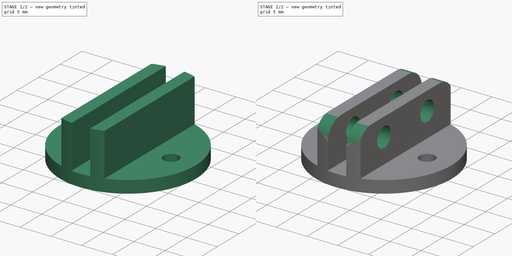
[diagram: build sequence overview — one tinted view per stage of 2, left to right]
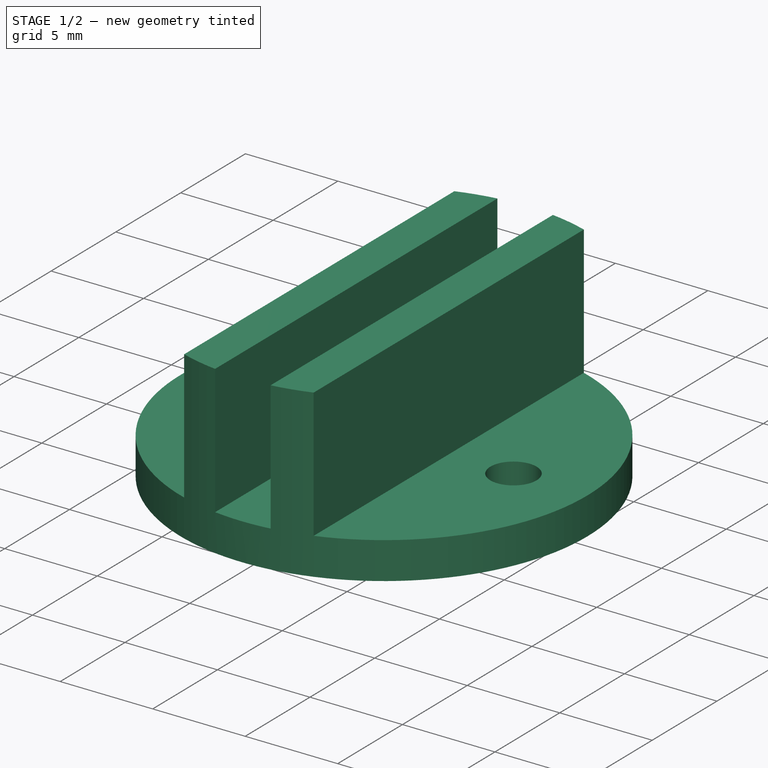
[diagram: stage 1 of 2 — iso view after this stage's code; geometry added in this stage tinted green]
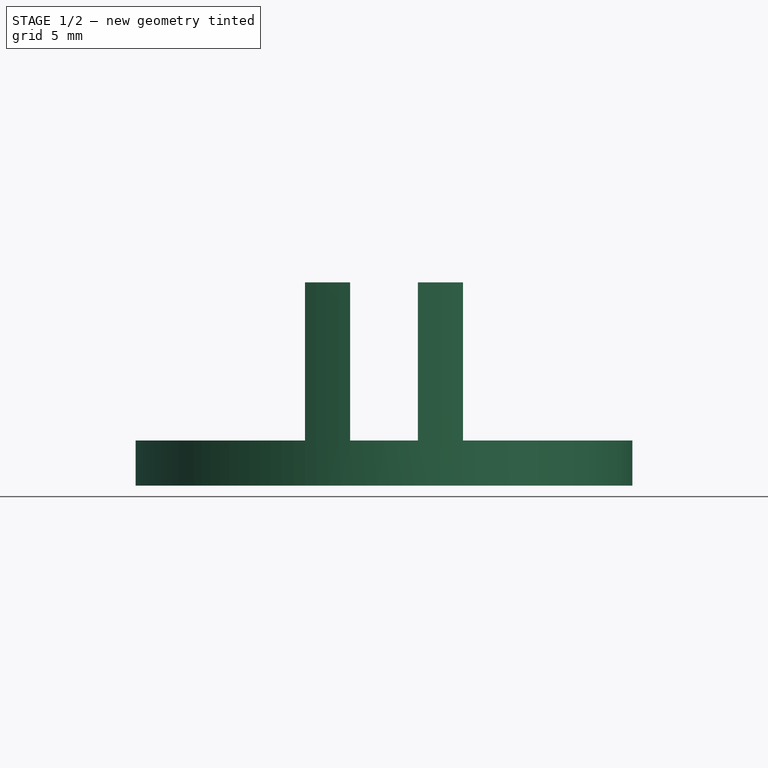
[diagram: stage 1 of 2 — front view after this stage's code; geometry added in this stage tinted green]
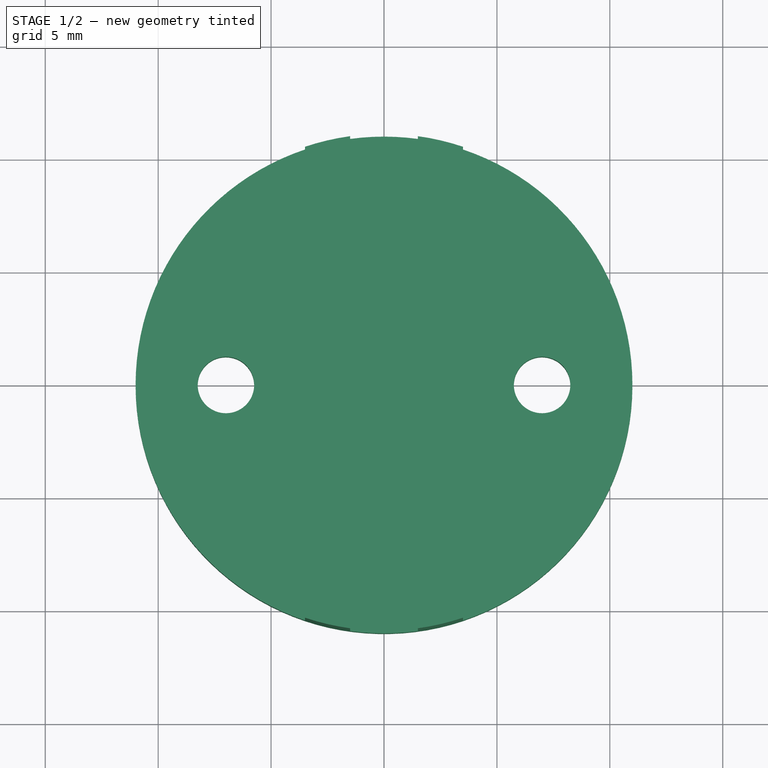
[diagram: stage 1 of 2 — top view after this stage's code; geometry added in this stage tinted green]
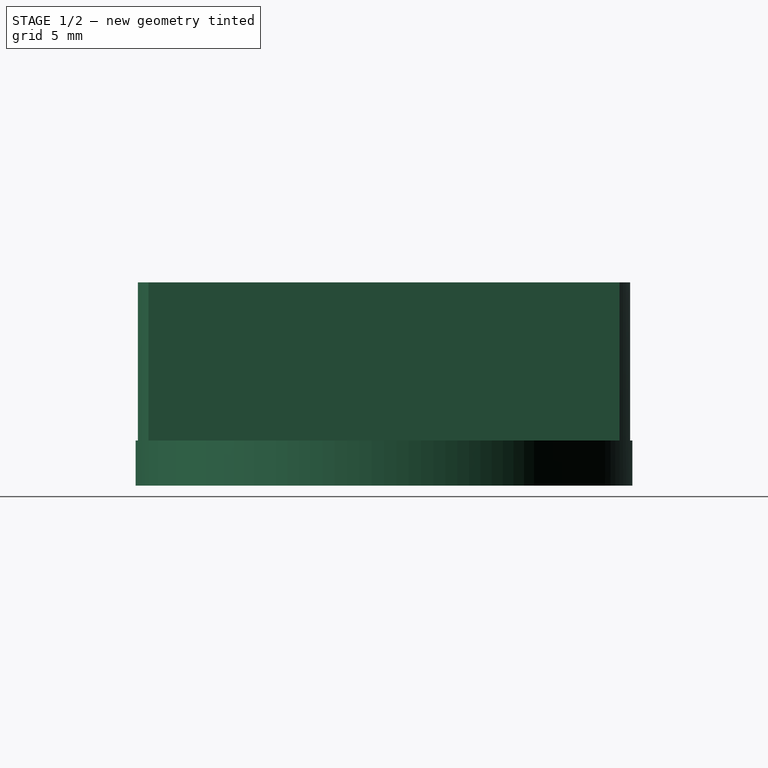
[diagram: stage 1 of 2 — right view after this stage's code; geometry added in this stage tinted green]
FCSTD DOCUMENT  (FreeCAD 0.19R24276 (Git))
Label: part5
License: All rights reserved
LicenseURL: http://en.wikipedia.org/wiki/All_rights_reserved
objects: Sketcher::SketchObject×3, PartDesign::Pad×2, PartDesign::Pocket×1, PartDesign::Body×1
note: 10 computed .brp shape members not serialized (recipe doc carries the construction recipe); baked Part::Feature solids carry a one-line shape summary decoded from their .brp

FEATURE [Sketcher::SketchObject] Sketch
  FullyConstrained = true
  MapMode = 5
  Support = -> [XY_Plane]
  sketch-geometry (3):
    g0: Circle CenterX=0 CenterY=0 CenterZ=0 NormalX=0 NormalY=0 NormalZ=1 AngleXU=0 Radius=11
    g1: Circle CenterX=-7 CenterY=0 CenterZ=0 NormalX=0 NormalY=0 NormalZ=1 AngleXU=0 Radius=1.25
    g2: Circle CenterX=7 CenterY=0 CenterZ=0 NormalX=0 NormalY=0 NormalZ=1 AngleXU=0 Radius=1.25
  constraints (7):
    c: Coincident(g0,g-1)
    c: Diameter(g0) = 22
    c: PointOnObject(g1,g-1)
    c: Symmetric(g2,g1,g0)
    c: Equal(g2,g1)
    c: Diameter(g2) = 2.5
    c: DistanceX(g1,g2) = 14
FEATURE [PartDesign::Pad] Pad
  Direction = (1,1,1)
  Length = 2
  Length2 = 100
  Profile = -> Sketch
  Type = 0
FEATURE [Sketcher::SketchObject] Sketch001
  ExternalGeometry = -> [Pad]
  FullyConstrained = true
  MapMode = 5
  Placement = pos=(0,0,2) rot=(0,0,1;0rad)
  Support = -> [Pad]
  sketch-geometry (8):
    g0: LineSegment StartX=-3.5 StartY=10.4283 StartZ=0 EndX=-3.5 EndY=-10.4283 EndZ=0
    g1: ArcOfCircle CenterX=0 CenterY=0 CenterZ=0 NormalX=0 NormalY=0 NormalZ=1 AngleXU=0 Radius=11 StartAngle=4.38858 EndAngle=4.5756
    g2: LineSegment StartX=-1.5 StartY=-10.8972 StartZ=0 EndX=-1.5 EndY=10.8972 EndZ=0
    g3: ArcOfCircle CenterX=0 CenterY=0 CenterZ=0 NormalX=0 NormalY=0 NormalZ=1 AngleXU=0 Radius=11 StartAngle=1.70759 EndAngle=1.89461
    g4: LineSegment StartX=1.5 StartY=10.8972 StartZ=0 EndX=1.5 EndY=-10.8972 EndZ=0
    g5: LineSegment StartX=3.5 StartY=-10.4283 StartZ=0 EndX=3.5 EndY=10.4283 EndZ=0
    g6: ArcOfCircle CenterX=0 CenterY=0 CenterZ=0 NormalX=0 NormalY=0 NormalZ=1 AngleXU=0 Radius=11 StartAngle=1.24699 EndAngle=1.43401
    g7: ArcOfCircle CenterX=0 CenterY=0 CenterZ=0 NormalX=0 NormalY=0 NormalZ=1 AngleXU=0 Radius=11 StartAngle=4.84918 EndAngle=5.0362
  constraints (23):
    c: PointOnObject(g0,g-3)
    c: PointOnObject(g0,g-3)
    c: Vertical(g0)
    c: Coincident(g1,g-1)
    c: Coincident(g1,g0)
    c: Coincident(g2,g1)
    c: Vertical(g2)
    c: Coincident(g3,g1)
    c: Coincident(g3,g2)
    c: Coincident(g3,g0)
    c: PointOnObject(g4,g-3)
    c: Vertical(g4)
    c: Vertical(g5)
    c: Coincident(g6,g1)
    c: Coincident(g6,g5)
    c: Coincident(g6,g4)
    c: Coincident(g7,g1)
    c: Coincident(g7,g4)
    c: Coincident(g7,g5)
    c: Symmetric(g4,g2,g-2)
    c: Symmetric(g5,g0,g-2)
    c: DistanceX(g4,g5) = 2
    c: DistanceX(g0,g5) = 7
FEATURE [PartDesign::Pad] Pad001
  BaseFeature = -> Pad
  Direction = (1,1,1)
  Length = 7
  Length2 = 100
  Profile = -> Sketch001
  Type = 0
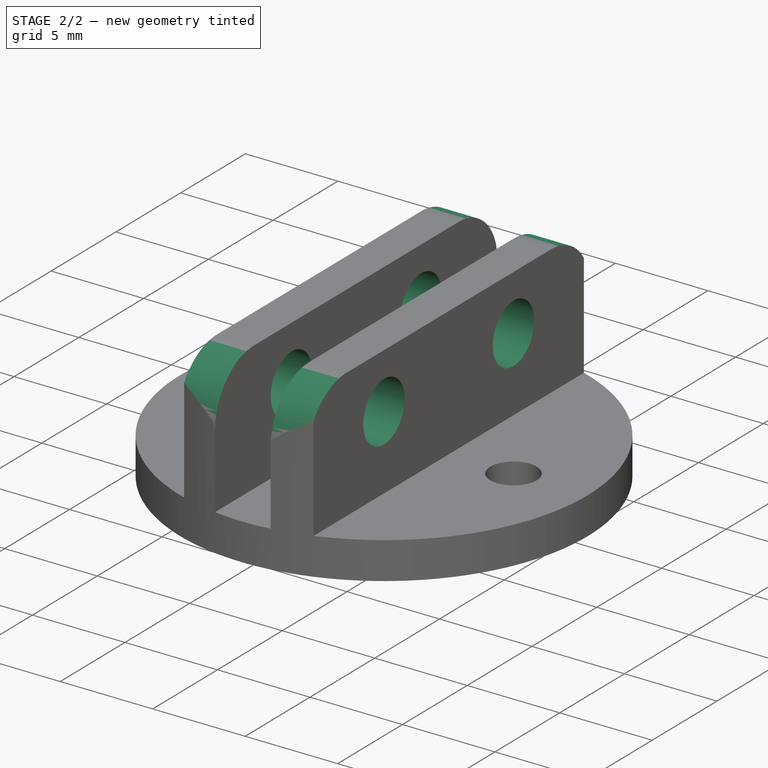
[diagram: stage 2 of 2 — iso view after this stage's code; geometry added in this stage tinted green]
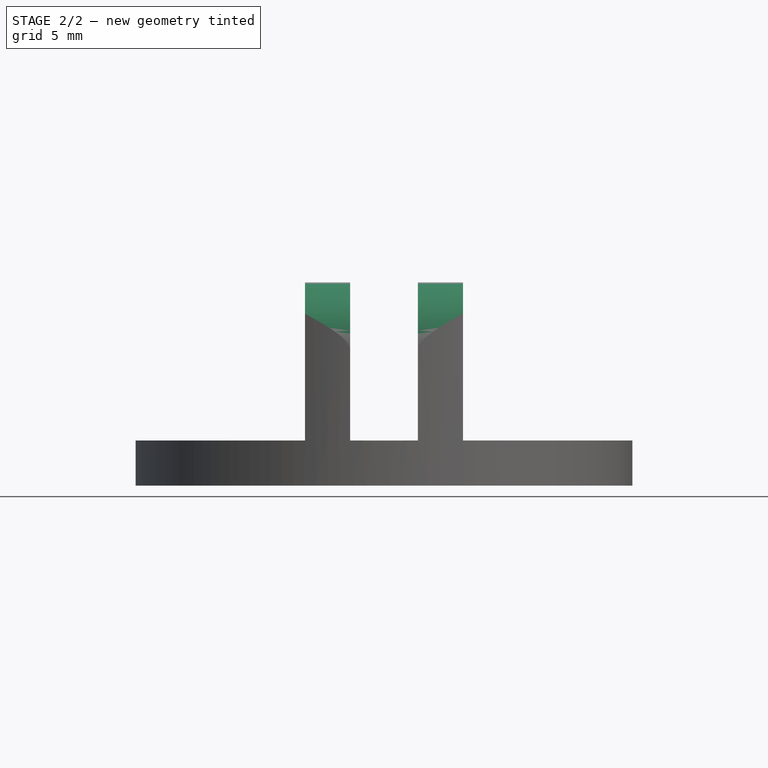
[diagram: stage 2 of 2 — front view after this stage's code; geometry added in this stage tinted green]
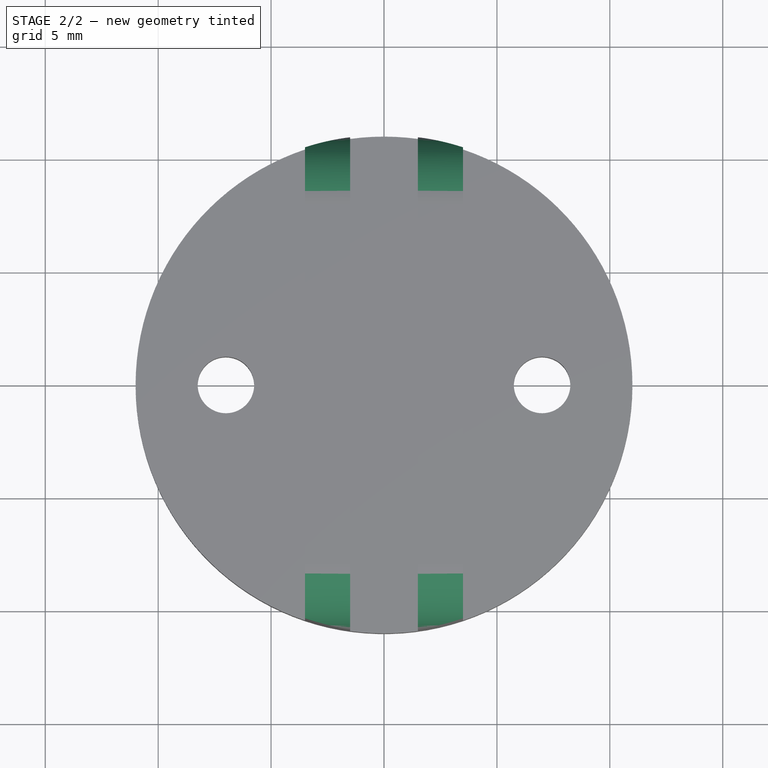
[diagram: stage 2 of 2 — top view after this stage's code; geometry added in this stage tinted green]
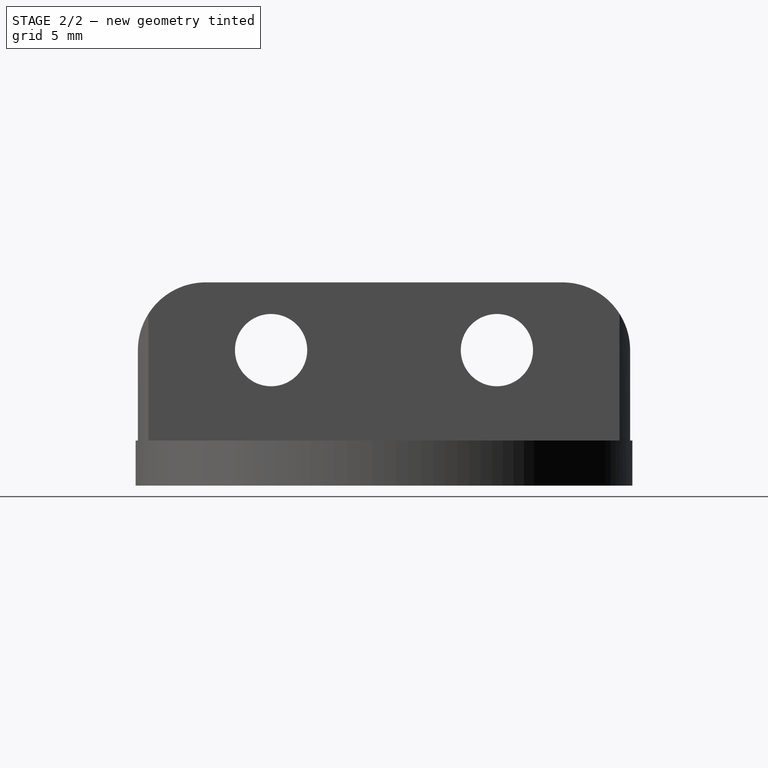
[diagram: stage 2 of 2 — right view after this stage's code; geometry added in this stage tinted green]
FEATURE [Sketcher::SketchObject] Sketch002
  ExternalGeometry = -> [Pad001]
  FullyConstrained = false
  MapMode = 5
  Placement = pos=(3.5,0,0) rot=(0.57735,0.57735,0.57735;2.0944rad)
  Support = -> [Pad001]
  sketch-geometry (12):
    g0: LineSegment StartX=10.8972 StartY=2 StartZ=0 EndX=15.1265 EndY=2 EndZ=0
    g1: LineSegment StartX=15.1265 StartY=2 StartZ=0 EndX=15.1265 EndY=12.3064 EndZ=0
    g2: LineSegment StartX=15.1265 StartY=12.3064 StartZ=0 EndX=-13.8712 EndY=12.3064 EndZ=0
    g3: LineSegment StartX=-13.8712 StartY=12.3064 StartZ=0 EndX=-13.4078 EndY=1.82545 EndZ=0
    g4: LineSegment StartX=-13.4078 StartY=1.82545 StartZ=0 EndX=-10.8972 EndY=2 EndZ=0
    g5: LineSegment StartX=-10.8972 StartY=2 StartZ=0 EndX=-10.8972 EndY=6 EndZ=0
    g6: LineSegment StartX=-7.89725 StartY=9 StartZ=0 EndX=7.89725 EndY=9 EndZ=0
    g7: LineSegment StartX=10.8972 StartY=6 StartZ=0 EndX=10.8972 EndY=2 EndZ=0
    g8: ArcOfCircle CenterX=-7.89725 CenterY=6 CenterZ=0 NormalX=0 NormalY=0 NormalZ=1 AngleXU=0 Radius=3 StartAngle=1.5708 EndAngle=3.14159
    g9: ArcOfCircle CenterX=7.89725 CenterY=6 CenterZ=0 NormalX=0 NormalY=0 NormalZ=1 AngleXU=0 Radius=3 StartAngle=0 EndAngle=1.5708
    g10: Circle CenterX=-5 CenterY=6 CenterZ=0 NormalX=0 NormalY=0 NormalZ=1 AngleXU=0 Radius=1.6
    g11: Circle CenterX=5 CenterY=6 CenterZ=0 NormalX=0 NormalY=0 NormalZ=1 AngleXU=0 Radius=1.6
  constraints (26):
    c: Coincident(g-9,g0)
    c: Horizontal(g0)
    c: Coincident(g0,g1)
    c: Vertical(g1)
    c: Coincident(g1,g2)
    c: Horizontal(g2)
    c: Coincident(g2,g3)
    c: Coincident(g3,g4)
    c: Coincident(g4,g-10)
    c: Coincident(g4,g5)
    c: Coincident(g7,g0)
    c: Tangent(g6,g8) = 1.5708
    c: Tangent(g5,g8) = 1.5708
    c: Tangent(g6,g9) = 1.5708
    c: Tangent(g7,g9) = 1.5708
    c: Equal(g9,g8)
    c: PointOnObject(g5,g-6)
    c: PointOnObject(g7,g-7)
    c: Radius(g9) = 3
    c: PointOnObject(g6,g-4)
    c: PointOnObject(g6,g-4)
    c: Equal(g10,g11)
    c: Diameter(g11) = 3.2
    c: Symmetric(g11,g10,g-2)
    c: DistanceY(g11,g-8) = 3
    c: DistanceX(g10,g11) = 10
FEATURE [PartDesign::Pocket] Pocket
  BaseFeature = -> Pad001
  Length = 0
  Length2 = 100
  Profile = -> Sketch002
  Type = 3
  UpToFace = -> Pad001 [Face16]
FEATURE [PartDesign::Body] Body
  Group = -> [Sketch,Pad,Sketch001,Pad001,Sketch002,Pocket]
  Origin = -> Origin
  Tip = -> Pocket
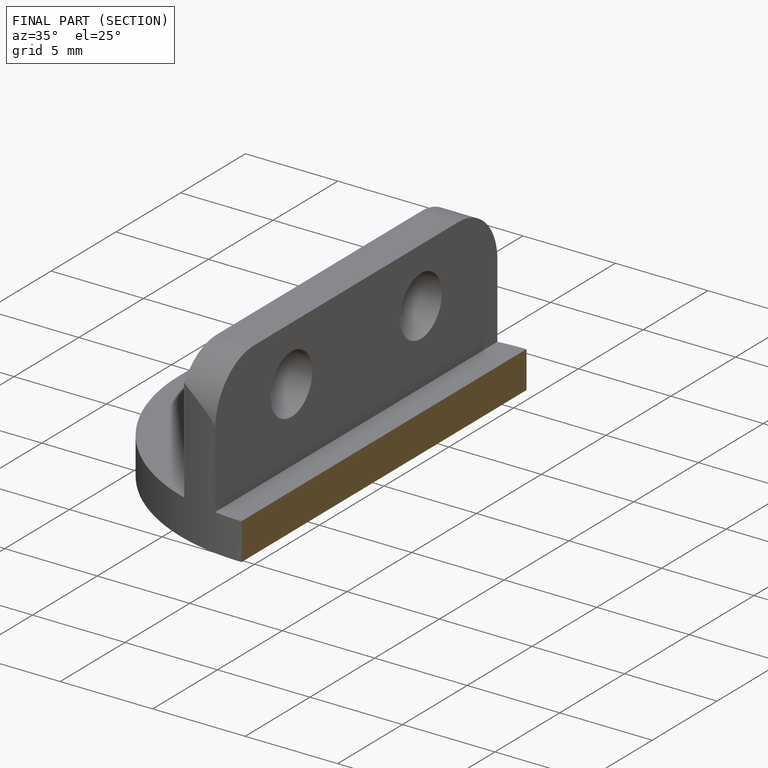
[diagram: finished part — half-section view (interior)]
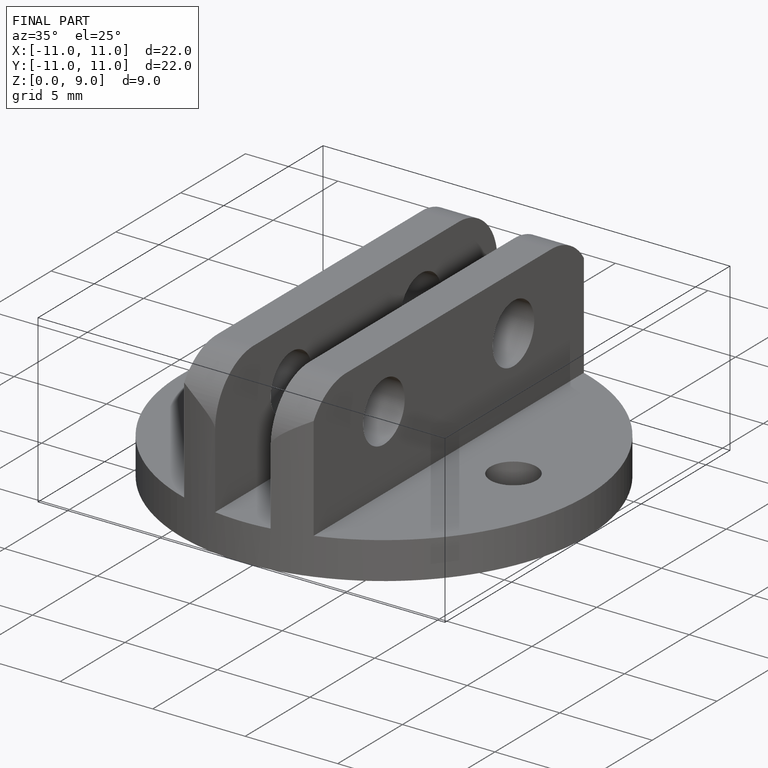
[diagram: finished part — iso view with bounding-box wireframe]
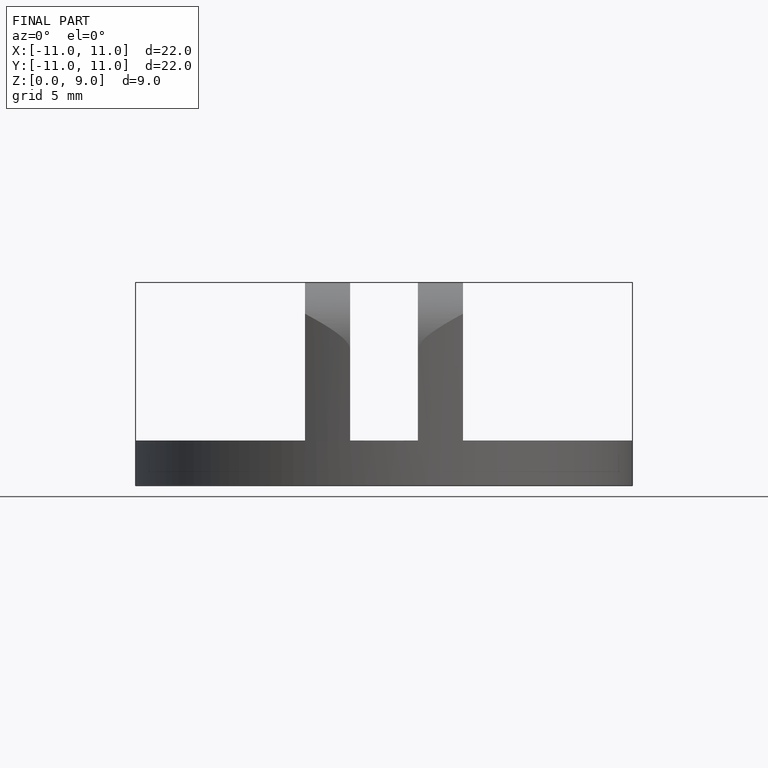
[diagram: finished part — front view with bounding-box wireframe]
